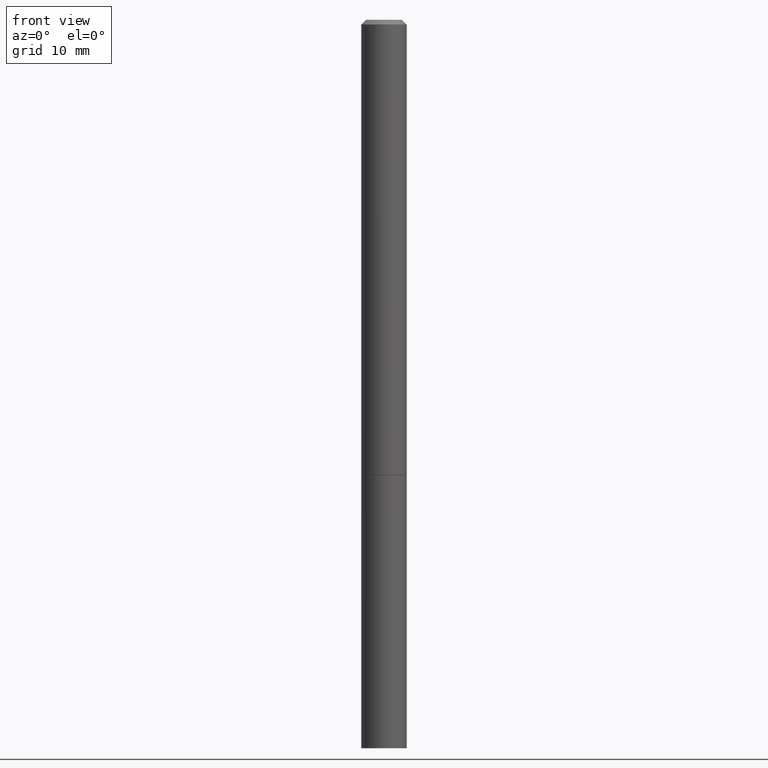
[diagram: clean part render]
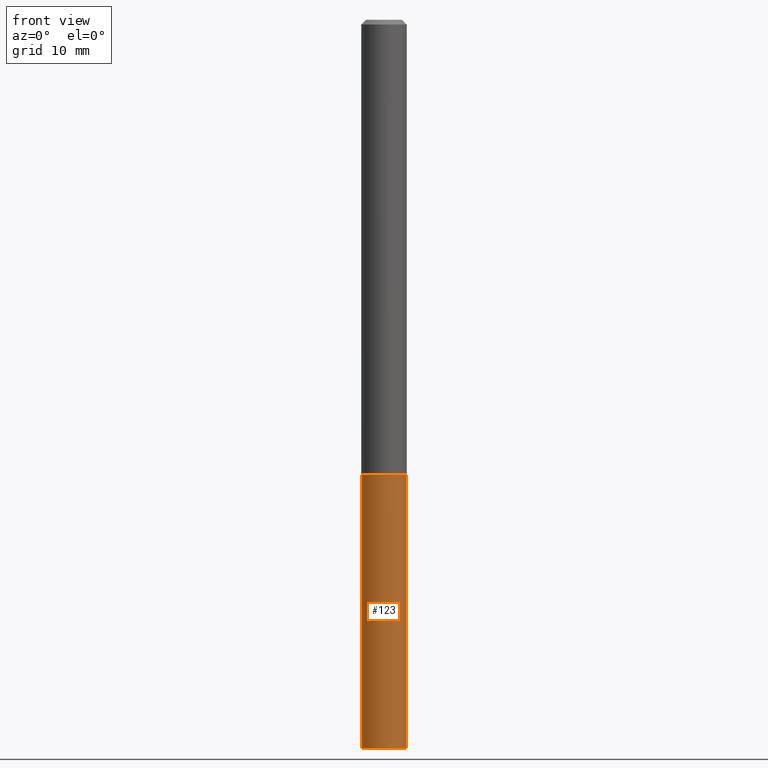
[diagram: same view with one face highlighted and labeled with its STEP entity id]
A machine part, front view. The second image highlights one B-rep face of the part: STEP entity #123.
In plain terms, the highlighted cylindrical surface (edge-blend (fillet) strip) has radius 2.3813 mm, axis along (-0, 0, 1).
Its self-contained STEP definition (entity closure, byte-faithful):
#2 = DIRECTION ( 'NONE',  ( 1.000000000000000000, -6.982962677686261189E-15, 0.000000000000000000 ) ) ;
#10 = ORIENTED_EDGE ( 'NONE', *, *, #357, .F. ) ;
#11 = CARTESIAN_POINT ( 'NONE',  ( 0.09375000000000001388, -7.201180261363985422E-15, -1.875000000000000000 ) ) ;
#26 = LINE ( 'NONE', #110, #206 ) ;
#33 = VECTOR ( 'NONE', #87, 39.37007874015748143 ) ;
#46 = EDGE_CURVE ( 'NONE', #190, #345, #217, .T. ) ;
#57 = CARTESIAN_POINT ( 'NONE',  ( 0.09375000000000001388, -1.112909676756252465E-14, -3.000000000000000444 ) ) ;
#79 = CARTESIAN_POINT ( 'NONE',  ( 7.336406418555409790E-29, -1.047444401652943635E-14, -3.000000000000000444 ) ) ;
#82 = ORIENTED_EDGE ( 'NONE', *, *, #343, .F. ) ;
#83 = DIRECTION ( 'NONE',  ( -2.445468806185136597E-29, 3.491481338843145583E-15, 1.000000000000000000 ) ) ;
#87 = DIRECTION ( 'NONE',  ( -2.445468806185136877E-29, 3.491481338843145188E-15, 1.000000000000000000 ) ) ;
#110 = CARTESIAN_POINT ( 'NONE',  ( -0.09375000000000001388, 6.661338147750940229E-16, -4.611501647113973995E-30 ) ) ;
#114 = EDGE_CURVE ( 'NONE', #345, #252, #202, .T. ) ;
#118 = CARTESIAN_POINT ( 'NONE',  ( 0.09375000000000001388, -6.546527510330875041E-16, 4.571415727308690506E-30 ) ) ;
#122 = VERTEX_POINT ( 'NONE', #264 ) ;
#123 = ADVANCED_FACE ( 'NONE', ( #312 ), #197, .T. ) ;
#134 = ORIENTED_EDGE ( 'NONE', *, *, #46, .T. ) ;
#169 = DIRECTION ( 'NONE',  ( 1.000000000000000000, -6.982962677686265922E-15, 4.876176775795935793E-29 ) ) ;
#190 = VERTEX_POINT ( 'NONE', #195 ) ;
#195 = CARTESIAN_POINT ( 'NONE',  ( -0.09375000000000001388, -7.844351948655072817E-15, -3.000000000000000444 ) ) ;
#197 = CYLINDRICAL_SURFACE ( 'NONE', #302, 0.09375000000000001388 ) ;
#202 = LINE ( 'NONE', #118, #33 ) ;
#206 = VECTOR ( 'NONE', #253, 39.37007874015748143 ) ;
#215 = EDGE_LOOP ( 'NONE', ( #82, #134, #358, #10 ) ) ;
#217 = CIRCLE ( 'NONE', #334, 0.09375000000000001388 ) ;
#237 = CARTESIAN_POINT ( 'NONE',  ( 0.000000000000000000, 0.000000000000000000, 0.000000000000000000 ) ) ;
#252 = VERTEX_POINT ( 'NONE', #11 ) ;
#253 = DIRECTION ( 'NONE',  ( -2.445468806185136877E-29, 3.491481338843145188E-15, 1.000000000000000000 ) ) ;
#264 = CARTESIAN_POINT ( 'NONE',  ( -0.09375000000000001388, -7.844351948655072817E-15, -1.875000000000000000 ) ) ;
#290 = CIRCLE ( 'NONE', #342, 0.09375000000000001388 ) ;
#302 = AXIS2_PLACEMENT_3D ( 'NONE', #237, #310, #169 ) ;
#304 = DIRECTION ( 'NONE',  ( -2.445468806185136597E-29, 3.491481338843145583E-15, 1.000000000000000000 ) ) ;
#310 = DIRECTION ( 'NONE',  ( -2.445468806185136597E-29, 3.491481338843145583E-15, 1.000000000000000000 ) ) ;
#312 = FACE_OUTER_BOUND ( 'NONE', #215, .T. ) ;
#334 = AXIS2_PLACEMENT_3D ( 'NONE', #79, #304, #2 ) ;
#337 = DIRECTION ( 'NONE',  ( 1.000000000000000000, -6.982962677686261189E-15, 0.000000000000000000 ) ) ;
#342 = AXIS2_PLACEMENT_3D ( 'NONE', #365, #83, #337 ) ;
#343 = EDGE_CURVE ( 'NONE', #190, #122, #26, .T. ) ;
#345 = VERTEX_POINT ( 'NONE', #57 ) ;
#357 = EDGE_CURVE ( 'NONE', #122, #252, #290, .T. ) ;
#358 = ORIENTED_EDGE ( 'NONE', *, *, #114, .T. ) ;
#365 = CARTESIAN_POINT ( 'NONE',  ( 4.585254011597131119E-29, -6.546527510330898707E-15, -1.875000000000000000 ) ) ;